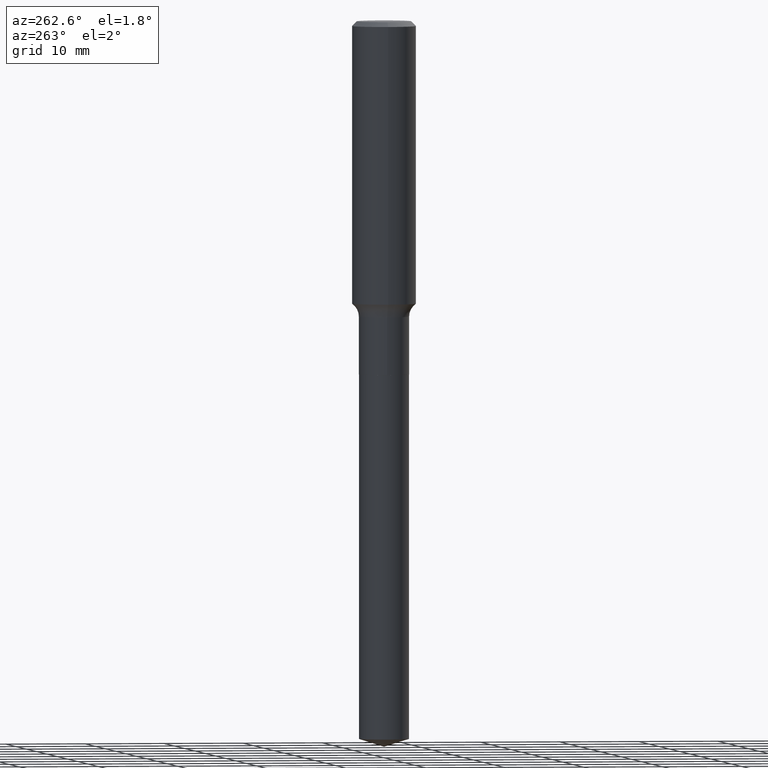
[diagram: clean part render]
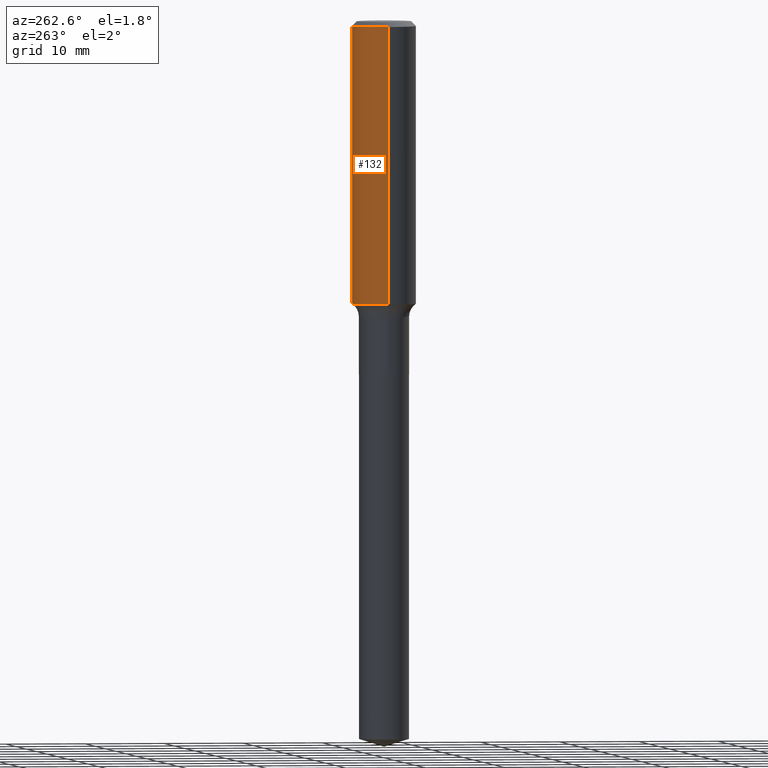
[diagram: same view with one face highlighted and labeled with its STEP entity id]
A machine part, auxiliary view. The second image highlights one B-rep face of the part: STEP entity #132.
In plain terms, the highlighted cylindrical surface (edge-blend (fillet) strip) has radius 4.0005 mm, axis along (-0, 0, 1).
Its self-contained STEP definition (entity closure, byte-faithful):
#9 = VERTEX_POINT ( 'NONE', #329 ) ;
#24 = CARTESIAN_POINT ( 'NONE',  ( 5.777420054612421980E-31, -8.248624663016985234E-17, -0.02362500000000015282 ) ) ;
#31 = CARTESIAN_POINT ( 'NONE',  ( 0.1575000000000001676, -5.969872642905350686E-15, -1.394839481737968789 ) ) ;
#34 = DIRECTION ( 'NONE',  ( -2.445468806185136597E-29, 3.491481338843145583E-15, 1.000000000000000000 ) ) ;
#36 = DIRECTION ( 'NONE',  ( -2.445468806185136877E-29, 3.491481338843145188E-15, 1.000000000000000000 ) ) ;
#60 = VECTOR ( 'NONE', #36, 39.37007874015748143 ) ;
#69 = CARTESIAN_POINT ( 'NONE',  ( 0.1575000000000000844, -1.099816621735587677E-15, 7.679978421878603638E-30 ) ) ;
#79 = VERTEX_POINT ( 'NONE', #365 ) ;
#87 = VECTOR ( 'NONE', #410, 39.37007874015748143 ) ;
#88 = EDGE_CURVE ( 'NONE', #9, #314, #469, .T. ) ;
#111 = EDGE_CURVE ( 'NONE', #162, #9, #229, .T. ) ;
#132 = ADVANCED_FACE ( 'NONE', ( #425 ), #194, .T. ) ;
#144 = DIRECTION ( 'NONE',  ( 1.000000000000000000, -6.982962677686267499E-15, 0.000000000000000000 ) ) ;
#162 = VERTEX_POINT ( 'NONE', #31 ) ;
#172 = DIRECTION ( 'NONE',  ( -2.445468806185136597E-29, 3.491481338843145583E-15, 1.000000000000000000 ) ) ;
#194 = CYLINDRICAL_SURFACE ( 'NONE', #288, 0.1575000000000000844 ) ;
#208 = AXIS2_PLACEMENT_3D ( 'NONE', #24, #172, #482 ) ;
#228 = CIRCLE ( 'NONE', #406, 0.1575000000000001676 ) ;
#229 = LINE ( 'NONE', #69, #60 ) ;
#241 = EDGE_CURVE ( 'NONE', #162, #79, #228, .T. ) ;
#269 = CARTESIAN_POINT ( 'NONE',  ( 3.411036442225645245E-29, -4.870056021169762416E-15, -1.394839481737968789 ) ) ;
#288 = AXIS2_PLACEMENT_3D ( 'NONE', #358, #320, #468 ) ;
#314 = VERTEX_POINT ( 'NONE', #438 ) ;
#320 = DIRECTION ( 'NONE',  ( -2.445468806185136597E-29, 3.491481338843145583E-15, 1.000000000000000000 ) ) ;
#328 = LINE ( 'NONE', #488, #87 ) ;
#329 = CARTESIAN_POINT ( 'NONE',  ( 0.1575000000000000011, -1.182302868365756679E-15, -0.02362500000000015282 ) ) ;
#332 = ORIENTED_EDGE ( 'NONE', *, *, #111, .F. ) ;
#344 = EDGE_CURVE ( 'NONE', #79, #314, #328, .T. ) ;
#358 = CARTESIAN_POINT ( 'NONE',  ( 0.000000000000000000, 0.000000000000000000, 0.000000000000000000 ) ) ;
#365 = CARTESIAN_POINT ( 'NONE',  ( -0.1575000000000001676, -3.750951212347604024E-15, -1.394839481737968789 ) ) ;
#406 = AXIS2_PLACEMENT_3D ( 'NONE', #269, #34, #144 ) ;
#410 = DIRECTION ( 'NONE',  ( -2.445468806185136877E-29, 3.491481338843145188E-15, 1.000000000000000000 ) ) ;
#420 = ORIENTED_EDGE ( 'NONE', *, *, #88, .F. ) ;
#424 = ORIENTED_EDGE ( 'NONE', *, *, #241, .T. ) ;
#425 = FACE_OUTER_BOUND ( 'NONE', #429, .T. ) ;
#429 = EDGE_LOOP ( 'NONE', ( #424, #467, #420, #332 ) ) ;
#438 = CARTESIAN_POINT ( 'NONE',  ( -0.1575000000000000011, -1.357166325077807514E-15, -0.02362500000000015282 ) ) ;
#467 = ORIENTED_EDGE ( 'NONE', *, *, #344, .T. ) ;
#468 = DIRECTION ( 'NONE',  ( 1.000000000000000000, -6.982962677686267499E-15, 4.876176775795936353E-29 ) ) ;
#469 = CIRCLE ( 'NONE', #208, 0.1575000000000000011 ) ;
#482 = DIRECTION ( 'NONE',  ( 1.000000000000000000, -6.982962677686265922E-15, 0.000000000000000000 ) ) ;
#488 = CARTESIAN_POINT ( 'NONE',  ( -0.1575000000000000844, 1.119104808822158392E-15, -7.747322767151481189E-30 ) ) ;